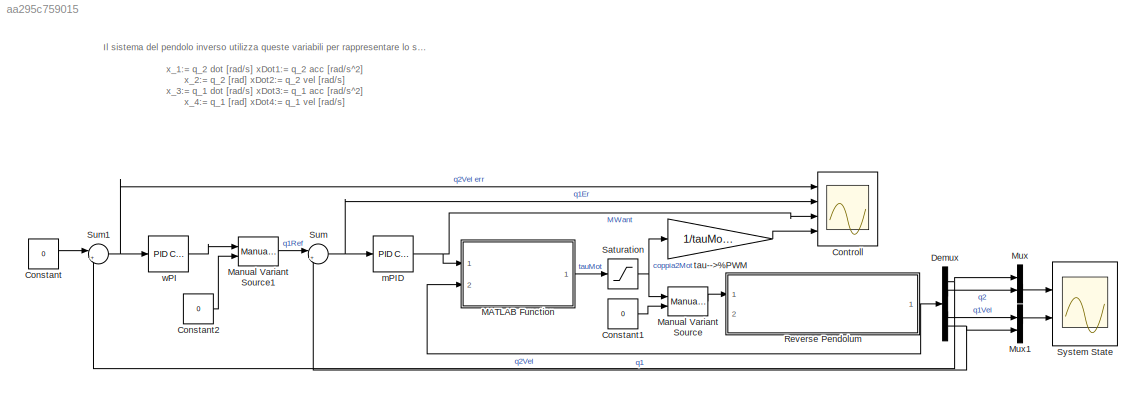
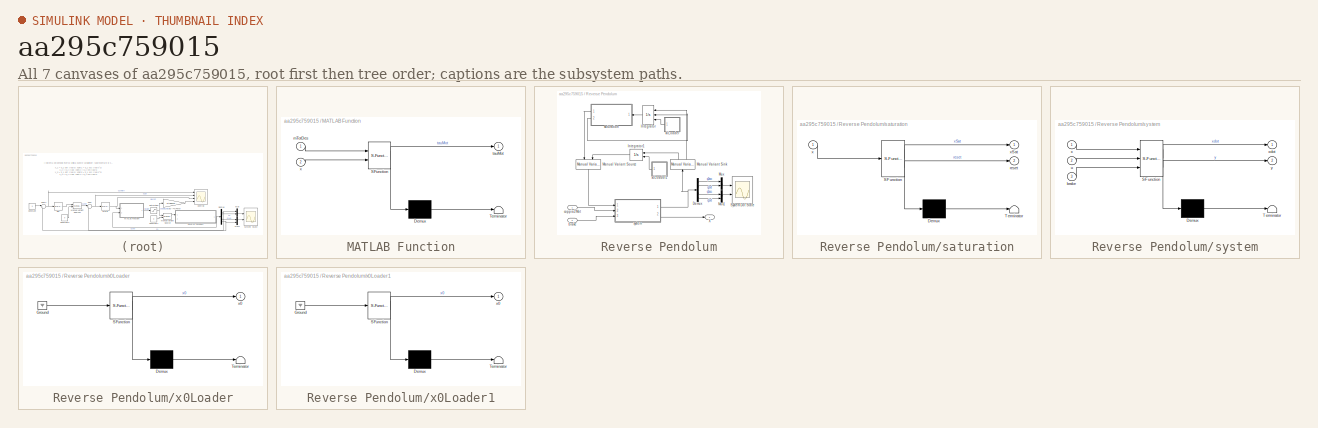
[diagram: thumbnail index - all 7 canvases of the model, root first then tree order]
MODEL slx_aa295c759015
KIND model
CONFIG AbsTol = auto
CONFIG EnableMultiTasking = off
CONFIG FixedStep = 0.0001
CONFIG InitFcn = simulationVar
CONFIG MaxStep = auto
CONFIG MinStep = auto
CONFIG RelTol = 1e-4
CONFIG SampleTimeConstraint = Unconstrained
CONFIG Solver = VariableStepAuto
CONFIG SolverName = VariableStepAuto
CONFIG StartTime = 0.0
CONFIG StopTime = 60
BLOCK [Constant] Constant
  Value = 0
BLOCK [Constant] Constant1
  Value = 0
BLOCK [Constant] Constant2
  Value = 0
BLOCK [Scope] Controll
  Floating = off
  NumInputPorts = 4
  Ports = [4]
  ScopeSpecificationString = Simulink.scopes.TimeScopeBlockCfg('CurrentConfiguration', extmgr.ConfigurationSet(extmgr.Configuration('Core','General UI',true),extmgr.Configuration('Core','Source UI',true),extmgr.Configuration('Sources','WiredSimulink',true,'DataLoggingVariableName','ScopeData1'),extmgr.Configuration('Visuals','Time Domain',true,'SerializedDisplays',{struct('MinYLimReal','-123.22672','MaxYLimReal','13.9716','YL...<+3592ch>
BLOCK [Demux] Demux
  DisplayOption = bar
  Ports = [1, 4]
BLOCK [SubSystem] MATLAB Function
  ErrorFcn = Stateflow.Translate.translate
  PermitHierarchicalResolution = ExplicitOnly
  Ports = [2, 1]
  RequestExecContextInheritance = off
  SFBlockType = MATLAB Function
  TreatAsAtomicUnit = on
BLOCK [Demux] MATLAB Function/ Demux 
  Outputs = 1
  Ports = [1, 1]
BLOCK [S-Function] MATLAB Function/ SFunction 
  EnableBusSupport = on
  FunctionName = sf_sfun
  PortCounts = [2 2]
  Ports = [2, 2]
  SFcnIsStateOwnerBlock = off
  SFunctionDeploymentMode = off
  Tag = Stateflow S-Function invertedPendolum 5
BLOCK [Terminator] MATLAB Function/ Terminator 
BLOCK [Inport] MATLAB Function/mTotDes
  IconDisplay = Port number
BLOCK [Outport] MATLAB Function/tauMot
  IconDisplay = Port number
BLOCK [Inport] MATLAB Function/x
  IconDisplay = Port number
  Port = 2
BLOCK [Reference] Manual Variant Source  REF=simulink/Signal
Routing/Manual
Variant Source
  Ports = [2, 1]
  SourceBlock = simulink/Signal\nRouting/Manual\nVariant Source
  SourceProductBaseCode = SL
  SourceProductName = Simulink
  SourceType = ManualVariantSource
BLOCK [Reference] Manual Variant Source1  REF=simulink/Signal
Routing/Manual
Variant Source
  Ports = [2, 1]
  SourceBlock = simulink/Signal\nRouting/Manual\nVariant Source
  SourceProductBaseCode = SL
  SourceProductName = Simulink
  SourceType = ManualVariantSource
BLOCK [Mux] Mux
  DisplayOption = bar
  Inputs = 2
  Ports = [2, 1]
BLOCK [Mux] Mux1
  DisplayOption = bar
  Inputs = 2
  Ports = [2, 1]
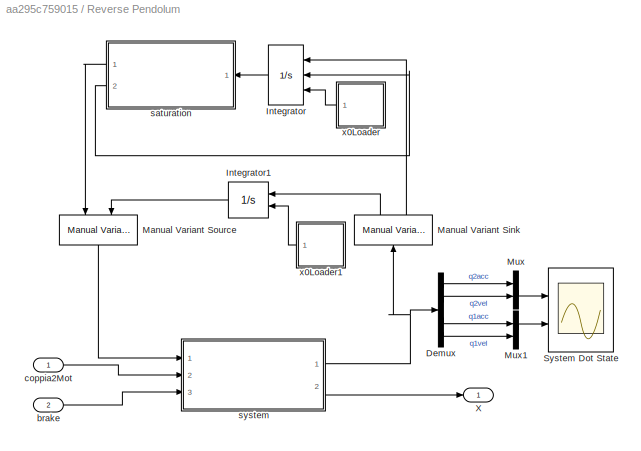
BLOCK [SubSystem] Reverse Pendolum
  Ports = [2, 1]
  RequestExecContextInheritance = off
BLOCK [Demux] Reverse Pendolum/Demux
  DisplayOption = bar
  Ports = [1, 4]
BLOCK [Integrator] Reverse Pendolum/Integrator
  ExternalReset = rising
  InitialCondition = [0,0.1,0]
  InitialConditionSource = external
  Ports = [3, 1]
BLOCK [Integrator] Reverse Pendolum/Integrator1
  InitialConditionSource = external
  Ports = [2, 1]
BLOCK [Reference] Reverse Pendolum/Manual Variant Sink  REF=simulink/Signal
Routing/Manual
Variant Sink
  Ports = [1, 2]
  SourceBlock = simulink/Signal\nRouting/Manual\nVariant Sink
  SourceProductBaseCode = SL
  SourceProductName = Simulink
  SourceType = ManualVariantSink
BLOCK [Reference] Reverse Pendolum/Manual Variant Source  REF=simulink/Signal
Routing/Manual
Variant Source
  Ports = [2, 1]
  SourceBlock = simulink/Signal\nRouting/Manual\nVariant Source
  SourceProductBaseCode = SL
  SourceProductName = Simulink
  SourceType = ManualVariantSource
BLOCK [Mux] Reverse Pendolum/Mux
  DisplayOption = bar
  Inputs = 2
  Ports = [2, 1]
BLOCK [Mux] Reverse Pendolum/Mux1
  DisplayOption = bar
  Inputs = 2
  Ports = [2, 1]
BLOCK [Scope] Reverse Pendolum/System Dot State
  Floating = off
  NumInputPorts = 2
  Ports = [2]
  ScopeSpecificationString = Simulink.scopes.TimeScopeBlockCfg('CurrentConfiguration', extmgr.ConfigurationSet(extmgr.Configuration('Core','General UI',true),extmgr.Configuration('Core','Source UI',true),extmgr.Configuration('Sources','WiredSimulink',true,'DataLoggingVariableName','ScopeData2'),extmgr.Configuration('Visuals','Time Domain',true,'SerializedDisplays',{struct('MinYLimReal','-12277.57606','MaxYLimReal','11488.9348...<+2165ch>
BLOCK [Outport] Reverse Pendolum/X
  IconDisplay = Port number
BLOCK [Inport] Reverse Pendolum/brake
  IconDisplay = Port number
  Port = 2
BLOCK [Inport] Reverse Pendolum/coppia2Mot
  IconDisplay = Port number
BLOCK [SubSystem] Reverse Pendolum/saturation
  ErrorFcn = Stateflow.Translate.translate
  PermitHierarchicalResolution = ExplicitOnly
  Ports = [1, 2]
  RequestExecContextInheritance = off
  SFBlockType = MATLAB Function
  TreatAsAtomicUnit = on
BLOCK [Demux] Reverse Pendolum/saturation/ Demux 
  Outputs = 1
  Ports = [1, 1]
BLOCK [S-Function] Reverse Pendolum/saturation/ SFunction 
  EnableBusSupport = on
  FunctionName = sf_sfun
  PortCounts = [1 3]
  Ports = [1, 3]
  SFcnIsStateOwnerBlock = off
  SFunctionDeploymentMode = off
  Tag = Stateflow S-Function invertedPendolum 2
BLOCK [Terminator] Reverse Pendolum/saturation/ Terminator 
BLOCK [Outport] Reverse Pendolum/saturation/reset
  IconDisplay = Port number
  Port = 2
BLOCK [Inport] Reverse Pendolum/saturation/x
  IconDisplay = Port number
BLOCK [Outport] Reverse Pendolum/saturation/xSat
  IconDisplay = Port number
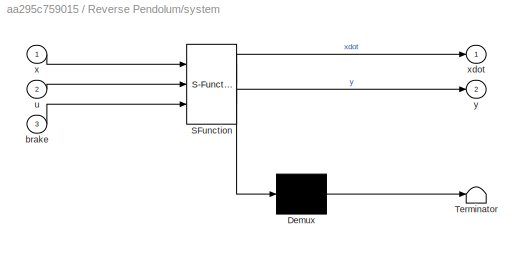
BLOCK [SubSystem] Reverse Pendolum/system
  ErrorFcn = Stateflow.Translate.translate
  PermitHierarchicalResolution = ExplicitOnly
  Ports = [3, 2]
  RequestExecContextInheritance = off
  SFBlockType = MATLAB Function
  TreatAsAtomicUnit = on
BLOCK [Demux] Reverse Pendolum/system/ Demux 
  Outputs = 1
  Ports = [1, 1]
BLOCK [S-Function] Reverse Pendolum/system/ SFunction 
  EnableBusSupport = on
  FunctionName = sf_sfun
  PortCounts = [3 3]
  Ports = [3, 3]
  SFcnIsStateOwnerBlock = off
  SFunctionDeploymentMode = off
  Tag = Stateflow S-Function invertedPendolum 1
BLOCK [Terminator] Reverse Pendolum/system/ Terminator 
BLOCK [Inport] Reverse Pendolum/system/brake
  IconDisplay = Port number
  Port = 3
BLOCK [Inport] Reverse Pendolum/system/u
  IconDisplay = Port number
  Port = 2
BLOCK [Inport] Reverse Pendolum/system/x
  IconDisplay = Port number
BLOCK [Outport] Reverse Pendolum/system/xdot
  IconDisplay = Port number
BLOCK [Outport] Reverse Pendolum/system/y
  IconDisplay = Port number
  Port = 2
BLOCK [SubSystem] Reverse Pendolum/x0Loader
  ErrorFcn = Stateflow.Translate.translate
  PermitHierarchicalResolution = ExplicitOnly
  Ports = [0, 1]
  RequestExecContextInheritance = off
  SFBlockType = MATLAB Function
  TreatAsAtomicUnit = on
BLOCK [Demux] Reverse Pendolum/x0Loader/ Demux 
  Outputs = 1
  Ports = [1, 1]
BLOCK [Ground] Reverse Pendolum/x0Loader/ Ground 
BLOCK [S-Function] Reverse Pendolum/x0Loader/ SFunction 
  EnableBusSupport = on
  FunctionName = sf_sfun
  PortCounts = [1 2]
  Ports = [1, 2]
  SFcnIsStateOwnerBlock = off
  SFunctionDeploymentMode = off
  Tag = Stateflow S-Function invertedPendolum 3
BLOCK [Terminator] Reverse Pendolum/x0Loader/ Terminator 
BLOCK [Outport] Reverse Pendolum/x0Loader/x0
  IconDisplay = Port number
BLOCK [SubSystem] Reverse Pendolum/x0Loader1
  ErrorFcn = Stateflow.Translate.translate
  PermitHierarchicalResolution = ExplicitOnly
  Ports = [0, 1]
  RequestExecContextInheritance = off
  SFBlockType = MATLAB Function
  TreatAsAtomicUnit = on
BLOCK [Demux] Reverse Pendolum/x0Loader1/ Demux 
  Outputs = 1
  Ports = [1, 1]
BLOCK [Ground] Reverse Pendolum/x0Loader1/ Ground 
BLOCK [S-Function] Reverse Pendolum/x0Loader1/ SFunction 
  EnableBusSupport = on
  FunctionName = sf_sfun
  PortCounts = [1 2]
  Ports = [1, 2]
  SFcnIsStateOwnerBlock = off
  SFunctionDeploymentMode = off
  Tag = Stateflow S-Function invertedPendolum 4
BLOCK [Terminator] Reverse Pendolum/x0Loader1/ Terminator 
BLOCK [Outport] Reverse Pendolum/x0Loader1/x0
  IconDisplay = Port number
BLOCK [Saturate] Saturation
  InputPortMap = u0
  LowerLimit = -tauMotMax
  Ports = [1, 1]
  UpperLimit = tauMotMax
BLOCK [Sum] Sum
  IconShape = round
  InputSameDT = off
  Inputs = |+-
  OutDataTypeStr = Inherit: Inherit via internal rule
  Ports = [2, 1]
  SaturateOnIntegerOverflow = off
BLOCK [Sum] Sum1
  IconShape = round
  InputSameDT = off
  Inputs = |+-
  OutDataTypeStr = Inherit: Inherit via internal rule
  Ports = [2, 1]
  SaturateOnIntegerOverflow = off
BLOCK [Scope] System State
  Floating = off
  NumInputPorts = 2
  Ports = [2]
  ScopeSpecificationString = Simulink.scopes.TimeScopeBlockCfg('CurrentConfiguration', extmgr.ConfigurationSet(extmgr.Configuration('Core','General UI',true),extmgr.Configuration('Core','Source UI',true),extmgr.Configuration('Sources','WiredSimulink',true),extmgr.Configuration('Visuals','Time Domain',true,'SerializedDisplays',{struct('MinYLimReal','-159.13496','MaxYLimReal','520.62422','YLabelReal','','MinYLimMag',' 0.00000',...<+2109ch>
BLOCK [Reference] mPID  REF=simulink/Continuous/PID Controller
  Ports = [1, 1]
  SourceBlock = simulink/Continuous/PID Controller
  SourceProductBaseCode = SL
  SourceProductName = Simulink
  SourceType = PID 1dof
BLOCK [Gain] tau-->%PWM
  Gain = 1/tauMotMax
  OutDataTypeStr = Inherit: Inherit via internal rule
  ParamDataTypeStr = Inherit: Inherit via internal rule
  SaturateOnIntegerOverflow = off
BLOCK [Reference] wPI  REF=simulink/Continuous/PID Controller
  Ports = [1, 1]
  SourceBlock = simulink/Continuous/PID Controller
  SourceProductBaseCode = SL
  SourceProductName = Simulink
  SourceType = PID 1dof
ANNOTATION (root): Il sistema del pendolo inverso utilizza queste variabili per rappresentare lo stato del sistema: x_1:= q_2 dot [rad/s] xDot1:= q_2 acc [rad/s^2] x_2:= q_2 [rad] xDot2:= q_2 vel [rad/s] x_3:= q_1 dot [rad/s] xDot3:= q_1 acc [rad/s^2] x_4:= q_1 [rad] xDot4:= q_1 vel [rad/s] Dentro il file "simulationVar.m" è possibile impostare i valori numerici delle costanti che danno vita alla simulazione
LINE Constant1:1 -> Manual Variant Source:2
LINE Constant2:1 -> Manual Variant Source1:2
LINE Constant:1 -> Sum1:1
NET Demux:1 -> Mux:1, Sum1:2
LINE Demux:2 -> Mux:2
LINE Demux:3 -> Mux1:1
NET Demux:4 -> Mux1:2, Sum:2
LINE MATLAB Function:1 -> Saturation:1
LINE Manual Variant Source1:1 -> Sum:1
LINE Manual Variant Source:1 -> Reverse Pendolum:1
LINE Mux1:1 -> System State:2
LINE Mux:1 -> System State:1
LINE Reverse Pendolum/Demux:1 -> Reverse Pendolum/Mux:1
LINE Reverse Pendolum/Demux:2 -> Reverse Pendolum/Mux:2
LINE Reverse Pendolum/Demux:3 -> Reverse Pendolum/Mux1:1
LINE Reverse Pendolum/Demux:4 -> Reverse Pendolum/Mux1:2
LINE Reverse Pendolum/Integrator1:1 -> Reverse Pendolum/Manual Variant Source:2
LINE Reverse Pendolum/Integrator:1 -> Reverse Pendolum/saturation:1
LINE Reverse Pendolum/Manual Variant Sink:1 -> Reverse Pendolum/Integrator1:1
LINE Reverse Pendolum/Manual Variant Sink:2 -> Reverse Pendolum/Integrator:1
LINE Reverse Pendolum/Manual Variant Source:1 -> Reverse Pendolum/system:1
LINE Reverse Pendolum/Mux1:1 -> Reverse Pendolum/System Dot State:2
LINE Reverse Pendolum/Mux:1 -> Reverse Pendolum/System Dot State:1
LINE Reverse Pendolum/brake:1 -> Reverse Pendolum/system:3
LINE Reverse Pendolum/coppia2Mot:1 -> Reverse Pendolum/system:2
LINE Reverse Pendolum/saturation:1 -> Reverse Pendolum/Manual Variant Source:1
LINE Reverse Pendolum/saturation:2 -> Reverse Pendolum/Integrator:2
NET Reverse Pendolum/system:1 -> Reverse Pendolum/Demux:1, Reverse Pendolum/Manual Variant Sink:1
LINE Reverse Pendolum/system:2 -> Reverse Pendolum/X:1
LINE Reverse Pendolum/x0Loader1:1 -> Reverse Pendolum/Integrator1:2
LINE Reverse Pendolum/x0Loader:1 -> Reverse Pendolum/Integrator:3
NET Reverse Pendolum:1 -> Demux:1, MATLAB Function:2
NET Saturation:1 -> Manual Variant Source:1, tau-->%PWM:1
NET Sum1:1 -> Controll:1, wPI:1
NET Sum:1 -> Controll:2, mPID:1
NET mPID:1 -> Controll:3, MATLAB Function:1
LINE tau-->%PWM:1 -> Controll:4
LINE wPI:1 -> Manual Variant Source1:1
note: NET lines group one-source signal fan-out (src -> all destinations, sorted); 1:1 wires keep LINE
CHART Reverse Pendolum/system states=1 transitions=1
  STATE_LABEL 'eML_blk_kernel()'
  STATE_LABEL 'SCRIPT:\nfunction [xdot,y] = pendoloNotLinSys(x,u,brake)\n%PENDOLONOTLINSYS Summary of this function goes here\n% xDot1:= q2 acc    [rad/s^2]\n% xDot2:= q2 vel    [rad/s]\n% xDot3:= q1 acc    [rad/s^2]\n% xDot4:= q1 vel    [rad/s]\n\n% x1:= q2 dot    [rad/s]\n% x2:= q2        [rad]\n% x3:= q1 dot    [rad/s]\n% x4:= q1        [rad]\n\n% u:= Coppia motore [g/s^2 * mm]\n% brake:= true change D2 and shutdown u\n\ncod...<+2113ch>'
CHART Reverse Pendolum/saturation states=1 transitions=1
  STATE_LABEL 'eML_blk_kernel()'
  STATE_LABEL 'SCRIPT:\nfunction [xSat,reset]  = phisicReaction(x)\n%PHISICREACTION Summary of this function goes here\n% Funzione che letto lo stato, in caso di urto con la base cambia\n% in maniera realistica lo stato introducendo una saturazione.\n\n% xDot1:= q2 acc    [rad/s^2]\n% xDot2:= q2 vel    [rad/s]\n% xDot3:= q1 acc    [rad/s^2]\n% xDot4:= q1 vel    [rad/s]\n\n% x1:= q2 dot    [rad/s]\n% x2:= q2        [rad]\n% x...<+538ch>'
CHART Reverse Pendolum/x0Loader states=1 transitions=1
  STATE_LABEL 'eML_blk_kernel()'
  STATE_LABEL "SCRIPT:\nfunction x0 = loadX0()\n% xDot1:= q2 acc    [rad/s^2]\n% xDot2:= q2 vel    [rad/s]\n% xDot3:= q1 acc    [rad/s^2]\n% xDot4:= q1 vel    [rad/s]\n\n% x1:= q2 dot    [rad/s]\n% x2:= q2        [rad]\n% x3:= q1 dot    [rad/s]\n% x4:= q1        [rad]\ncoder.extrinsic('evalin', 'assignin')\nx0 = zeros(4,1);          % Needed in order to set variable class correctly\nx0 = evalin('base','x0'); % Read value fro...<+12ch>"
CHART Reverse Pendolum/x0Loader1 states=1 transitions=1
  STATE_LABEL 'eML_blk_kernel()'
  STATE_LABEL "SCRIPT:\nfunction x0 = loadX0()\n% xDot1:= q2 acc    [rad/s^2]\n% xDot2:= q2 vel    [rad/s]\n% xDot3:= q1 acc    [rad/s^2]\n% xDot4:= q1 vel    [rad/s]\n\n% x1:= q2 dot    [rad/s]\n% x2:= q2        [rad]\n% x3:= q1 dot    [rad/s]\n% x4:= q1        [rad]\ncoder.extrinsic('evalin', 'assignin')\nx0 = zeros(4,1);          % Needed in order to set variable class correctly\nx0 = evalin('base','x0'); % Read value fro...<+12ch>"
CHART MATLAB Function states=1 transitions=1
  STATE_LABEL 'eML_blk_kernel()'
  STATE_LABEL "SCRIPT:\nfunction tauMot = Mwant(mTotDes, x)\n% x1:= q2 dot    [rad/s]\n% x2:= q2        [rad]\n% x3:= q1 dot    [rad/s]\n% x4:= q1        [rad]\n% tauMot:= Coppia motore [g/s^2 * mm]\n\ncoder.extrinsic('evalin', 'assignin')\nKmgl = 0;                  % Needed in order to set variable class correctly\nKmgl = evalin('base','Kmgl'); % Read value from workspace\n\nD1 = 0;                  % Needed in order to s...<+1496ch>"
